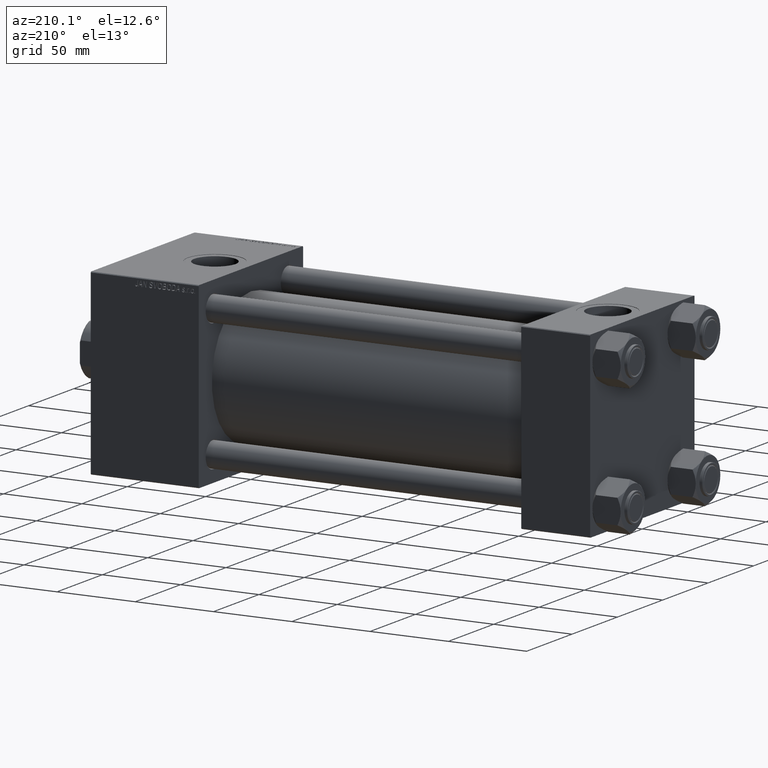
[diagram: clean part render]
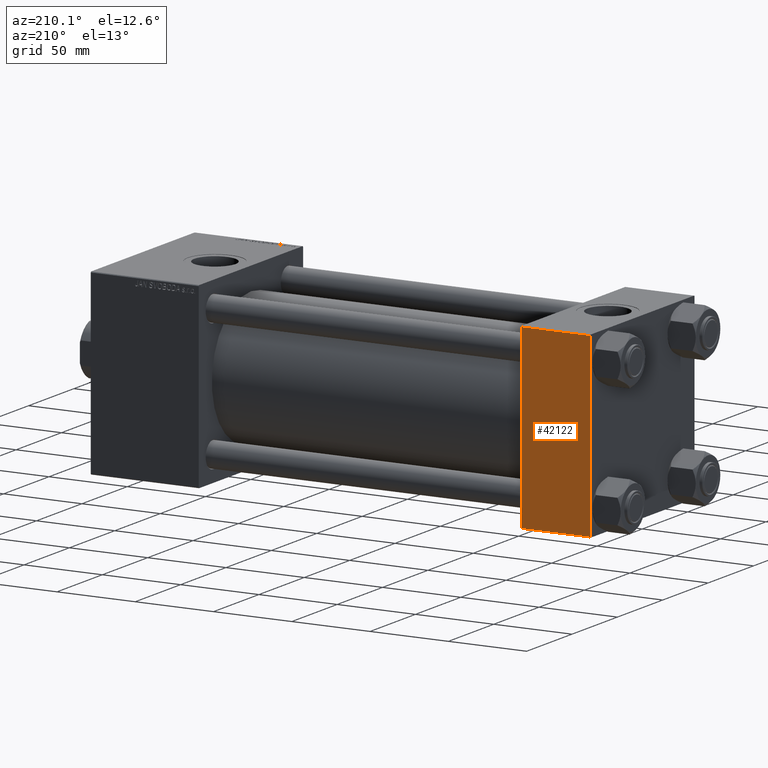
[diagram: same view with one face highlighted and labeled with its STEP entity id]
A machine part, auxiliary view. The second image highlights one B-rep face of the part: STEP entity #42122.
In plain terms, the highlighted planar face has unit normal (0, 1, 0).
Its self-contained STEP definition (entity closure, byte-faithful):
#1106 = CARTESIAN_POINT ( 'NONE',  ( 44.00000000000000000, 57.49999999999999289, 57.00000000000003553 ) ) ;
#2195 = ORIENTED_EDGE ( 'NONE', *, *, #44745, .T. ) ;
#2508 = DIRECTION ( 'NONE',  ( 0.000000000000000000, 0.000000000000000000, -1.000000000000000000 ) ) ;
#4370 = EDGE_CURVE ( 'NONE', #44658, #16418, #18419, .T. ) ;
#4444 = LINE ( 'NONE', #20121, #26010 ) ;
#4652 = PLANE ( 'NONE',  #7045 ) ;
#5095 = CARTESIAN_POINT ( 'NONE',  ( 44.00000000000000000, 57.49999999999999289, -57.00000000000000711 ) ) ;
#6242 = ORIENTED_EDGE ( 'NONE', *, *, #46839, .T. ) ;
#7045 = AXIS2_PLACEMENT_3D ( 'NONE', #43692, #8252, #23919 ) ;
#8252 = DIRECTION ( 'NONE',  ( -0.000000000000000000, 1.000000000000000000, 0.000000000000000000 ) ) ;
#14316 = CARTESIAN_POINT ( 'NONE',  ( 0.000000000000000000, 57.49999999999999289, 57.50000000000000711 ) ) ;
#16208 = FACE_OUTER_BOUND ( 'NONE', #36752, .T. ) ;
#16418 = VERTEX_POINT ( 'NONE', #18499 ) ;
#17915 = VECTOR ( 'NONE', #2508, 1000.000000000000000 ) ;
#18419 = LINE ( 'NONE', #14316, #17915 ) ;
#18499 = CARTESIAN_POINT ( 'NONE',  ( 0.000000000000000000, 57.49999999999999289, -57.00000000000000711 ) ) ;
#20121 = CARTESIAN_POINT ( 'NONE',  ( 44.00000000000000000, 57.49999999999999289, 57.00000000000003553 ) ) ;
#21023 = LINE ( 'NONE', #5095, #44938 ) ;
#21320 = CARTESIAN_POINT ( 'NONE',  ( 44.00000000000000000, 57.49999999999999289, 57.50000000000000711 ) ) ;
#21571 = VERTEX_POINT ( 'NONE', #1106 ) ;
#22073 = LINE ( 'NONE', #21320, #31053 ) ;
#23919 = DIRECTION ( 'NONE',  ( 0.000000000000000000, -0.000000000000000000, 1.000000000000000000 ) ) ;
#26010 = VECTOR ( 'NONE', #43744, 1000.000000000000000 ) ;
#27792 = ORIENTED_EDGE ( 'NONE', *, *, #4370, .F. ) ;
#28032 = CARTESIAN_POINT ( 'NONE',  ( 44.00000000000000000, 57.49999999999999289, -57.00000000000000711 ) ) ;
#31053 = VECTOR ( 'NONE', #45701, 1000.000000000000000 ) ;
#31173 = CARTESIAN_POINT ( 'NONE',  ( 0.000000000000000000, 57.49999999999999289, 57.00000000000003553 ) ) ;
#31743 = EDGE_CURVE ( 'NONE', #21571, #42147, #22073, .T. ) ;
#36752 = EDGE_LOOP ( 'NONE', ( #43899, #6242, #27792, #2195 ) ) ;
#40805 = DIRECTION ( 'NONE',  ( -1.000000000000000000, 0.000000000000000000, 0.000000000000000000 ) ) ;
#42122 = ADVANCED_FACE ( 'NONE', ( #16208 ), #4652, .T. ) ;
#42147 = VERTEX_POINT ( 'NONE', #28032 ) ;
#43692 = CARTESIAN_POINT ( 'NONE',  ( 44.00000000000000000, 57.49999999999999289, 57.50000000000000711 ) ) ;
#43744 = DIRECTION ( 'NONE',  ( 1.000000000000000000, 0.000000000000000000, 0.000000000000000000 ) ) ;
#43899 = ORIENTED_EDGE ( 'NONE', *, *, #31743, .T. ) ;
#44658 = VERTEX_POINT ( 'NONE', #31173 ) ;
#44745 = EDGE_CURVE ( 'NONE', #44658, #21571, #4444, .T. ) ;
#44938 = VECTOR ( 'NONE', #40805, 1000.000000000000000 ) ;
#45701 = DIRECTION ( 'NONE',  ( 0.000000000000000000, 0.000000000000000000, -1.000000000000000000 ) ) ;
#46839 = EDGE_CURVE ( 'NONE', #42147, #16418, #21023, .T. ) ;